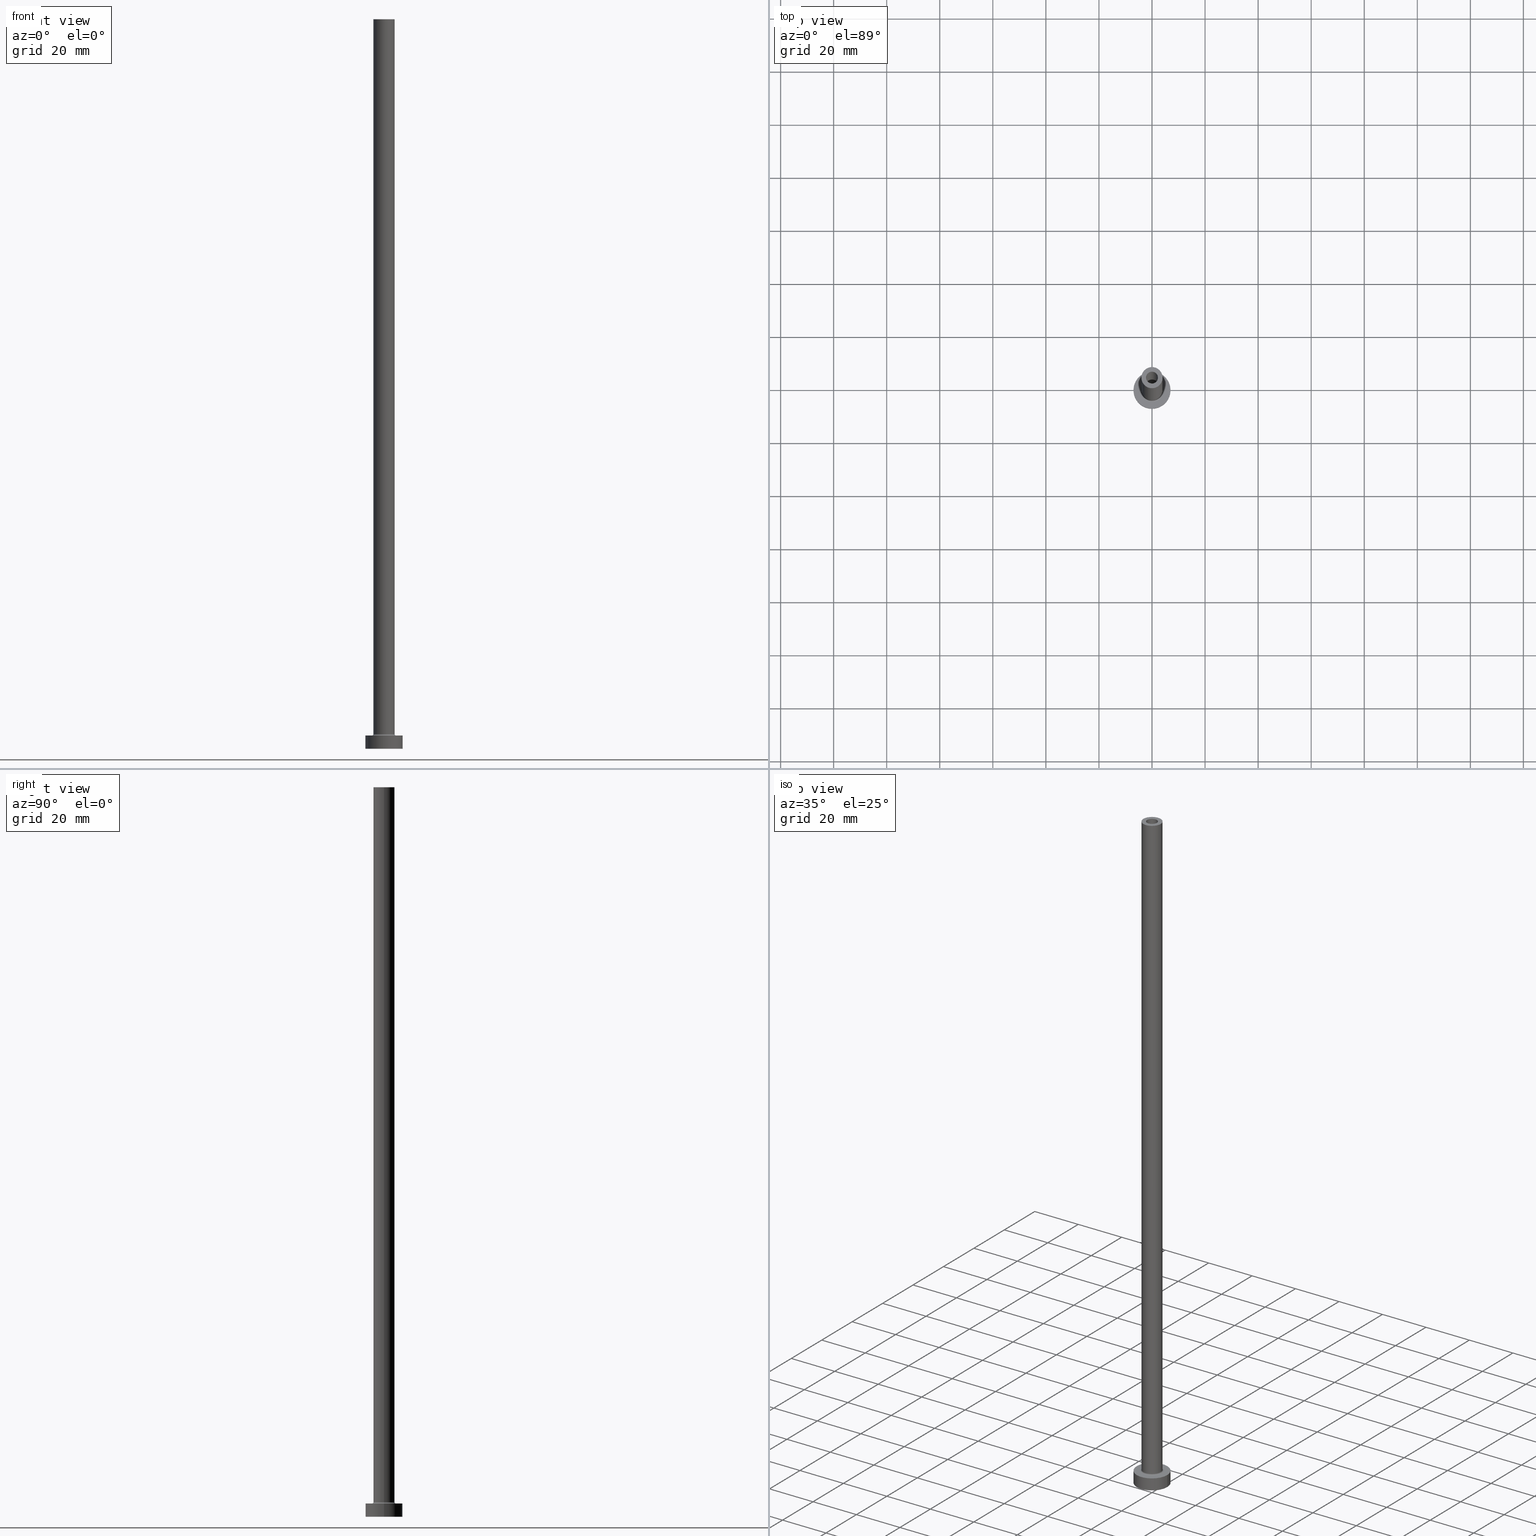
[diagram: canonical four-view strip — front | top / right | iso, engineering-drawing reading convention]
A machine part, canonical four-view strip (front | top / right | iso — engineering-drawing reading convention). The complete STEP part file that produces these views, byte-faithful:
ISO-10303-21;
HEADER;
FILE_DESCRIPTION (( 'STEP AP203' ),
    '1' );
FILE_NAME ('5592.STEP',
    '2023-02-13T17:22:00',
    ( '' ),
    ( '' ),
    'SwSTEP 2.0',
    'SolidWorks 2019',
    '' );
FILE_SCHEMA (( 'CONFIG_CONTROL_DESIGN' ));
ENDSEC;

DATA;
#1 = ORIENTED_EDGE ( 'NONE', *, *, #194, .T. ) ;
#2 = CYLINDRICAL_SURFACE ( 'NONE', #152, 7.000000000000000000 ) ;
#3 = ADVANCED_FACE ( 'NONE', ( #252 ), #14, .F. ) ;
#4 = CARTESIAN_POINT ( 'NONE',  ( -7.000000000000000000, 0.000000000000000000, 0.000000000000000000 ) ) ;
#5 = APPROVAL_DATE_TIME ( #254, #162 ) ;
#6 = CC_DESIGN_PERSON_AND_ORGANIZATION_ASSIGNMENT ( #149, #285, ( #379 ) ) ;
#7 = CARTESIAN_POINT ( 'NONE',  ( 0.000000000000000000, 0.000000000000000000, 275.0000000000000000 ) ) ;
#8 = ORIENTED_EDGE ( 'NONE', *, *, #247, .F. ) ;
#9 = APPROVAL_ROLE ( '' ) ;
#10 = COORDINATED_UNIVERSAL_TIME_OFFSET ( 1, 0, .AHEAD. ) ;
#11 = AXIS2_PLACEMENT_3D ( 'NONE', #158, #454, #55 ) ;
#12 = CARTESIAN_POINT ( 'NONE',  ( 0.000000000000000000, 0.000000000000000000, 0.000000000000000000 ) ) ;
#13 = CIRCLE ( 'NONE', #338, 2.399999999999999911 ) ;
#14 = CYLINDRICAL_SURFACE ( 'NONE', #385, 2.399999999999999911 ) ;
#15 = PLANE ( 'NONE',  #143 ) ;
#16 = EDGE_CURVE ( 'NONE', #17, #447, #249, .T. ) ;
#17 = VERTEX_POINT ( 'NONE', #439 ) ;
#18 = ORIENTED_EDGE ( 'NONE', *, *, #343, .F. ) ;
#19 = VECTOR ( 'NONE', #160, 1000.000000000000000 ) ;
#20 = DIRECTION ( 'NONE',  ( 0.000000000000000000, 0.000000000000000000, -1.000000000000000000 ) ) ;
#21 = DIRECTION ( 'NONE',  ( 1.000000000000000000, 0.000000000000000000, 0.000000000000000000 ) ) ;
#22 = EDGE_CURVE ( 'NONE', #380, #446, #255, .T. ) ;
#23 = FACE_OUTER_BOUND ( 'NONE', #41, .T. ) ;
#24 = CARTESIAN_POINT ( 'NONE',  ( -2.250000000000000000, 0.000000000000000000, 230.0000000000000284 ) ) ;
#25 = CARTESIAN_POINT ( 'NONE',  ( 0.000000000000000000, 0.000000000000000000, 5.000000000000000000 ) ) ;
#26 = DIRECTION ( 'NONE',  ( 0.000000000000000000, 0.000000000000000000, 1.000000000000000000 ) ) ;
#27 = DIRECTION ( 'NONE',  ( 0.000000000000000000, 0.000000000000000000, 1.000000000000000000 ) ) ;
#28 = AXIS2_PLACEMENT_3D ( 'NONE', #275, #108, #207 ) ;
#29 = CC_DESIGN_APPROVAL ( #42, ( #379 ) ) ;
#30 = DIRECTION ( 'NONE',  ( 0.000000000000000000, 0.000000000000000000, -1.000000000000000000 ) ) ;
#31 = CARTESIAN_POINT ( 'NONE',  ( 2.250000000000000000, 2.755455298081543792E-16, 275.0000000000000000 ) ) ;
#32 = ADVANCED_FACE ( 'NONE', ( #434 ), #359, .F. ) ;
#33 = ORIENTED_EDGE ( 'NONE', *, *, #227, .T. ) ;
#34 = CARTESIAN_POINT ( 'NONE',  ( -4.000000000000000000, 0.000000000000000000, 275.0000000000000000 ) ) ;
#35 = EDGE_LOOP ( 'NONE', ( #259, #239, #290, #76 ) ) ;
#36 = DIRECTION ( 'NONE',  ( 0.000000000000000000, 0.000000000000000000, 1.000000000000000000 ) ) ;
#37 = CIRCLE ( 'NONE', #11, 4.000000000000000000 ) ;
#38 = LOCAL_TIME ( 18, 22, 0.000000000000000000, #400 ) ;
#39 = ORIENTED_EDGE ( 'NONE', *, *, #66, .T. ) ;
#40 = ORIENTED_EDGE ( 'NONE', *, *, #95, .T. ) ;
#41 = EDGE_LOOP ( 'NONE', ( #151, #429, #122, #48 ) ) ;
#42 = APPROVAL ( #251, 'NEUR�EN�' ) ;
#43 = CARTESIAN_POINT ( 'NONE',  ( 4.000000000000000000, 4.898587196589412829E-16, 275.0000000000000000 ) ) ;
#44 = FACE_BOUND ( 'NONE', #106, .T. ) ;
#45 = AXIS2_PLACEMENT_3D ( 'NONE', #422, #89, #372 ) ;
#46 = ADVANCED_FACE ( 'NONE', ( #44, #185 ), #15, .T. ) ;
#47 = ORIENTED_EDGE ( 'NONE', *, *, #208, .F. ) ;
#48 = ORIENTED_EDGE ( 'NONE', *, *, #176, .F. ) ;
#49 = EDGE_LOOP ( 'NONE', ( #18, #8 ) ) ;
#50 = CARTESIAN_POINT ( 'NONE',  ( 4.000000000000000000, 4.898587196589412829E-16, 5.500000000000005329 ) ) ;
#51 = ORIENTED_EDGE ( 'NONE', *, *, #421, .T. ) ;
#52 = VECTOR ( 'NONE', #401, 1000.000000000000000 ) ;
#53 = DIRECTION ( 'NONE',  ( 1.000000000000000000, 0.000000000000000000, 0.000000000000000000 ) ) ;
#54 = DIRECTION ( 'NONE',  ( -1.000000000000000000, 1.224646799147351482E-16, 0.000000000000000000 ) ) ;
#55 = DIRECTION ( 'NONE',  ( 1.000000000000000000, 0.000000000000000000, 0.000000000000000000 ) ) ;
#56 = DIRECTION ( 'NONE',  ( 1.000000000000000000, 0.000000000000000000, 0.000000000000000000 ) ) ;
#57 = FACE_BOUND ( 'NONE', #49, .T. ) ;
#58 = DIRECTION ( 'NONE',  ( 0.000000000000000000, 0.000000000000000000, 1.000000000000000000 ) ) ;
#59 = TOROIDAL_SURFACE ( 'NONE', #170, 4.500000000000000888, 0.5000000000000000000 ) ;
#60 = ADVANCED_FACE ( 'NONE', ( #237, #344 ), #199, .T. ) ;
#61 = CARTESIAN_POINT ( 'NONE',  ( -2.399999999999999911, 0.000000000000000000, 236.7882250993908997 ) ) ;
#62 = EDGE_LOOP ( 'NONE', ( #224, #281 ) ) ;
#63 = LINE ( 'NONE', #34, #328 ) ;
#64 = APPROVAL_DATE_TIME ( #295, #291 ) ;
#65 = FACE_OUTER_BOUND ( 'NONE', #35, .T. ) ;
#66 = EDGE_CURVE ( 'NONE', #101, #120, #368, .T. ) ;
#67 = AXIS2_PLACEMENT_3D ( 'NONE', #147, #317, #388 ) ;
#68 = CARTESIAN_POINT ( 'NONE',  ( 2.399999999999999911, 2.939152317953647106E-16, 230.0000000000000284 ) ) ;
#69 = CC_DESIGN_SECURITY_CLASSIFICATION ( #379, ( #266 ) ) ;
#70 = ORIENTED_EDGE ( 'NONE', *, *, #406, .T. ) ;
#71 = PERSON_AND_ORGANIZATION_ROLE ( 'design_owner' ) ;
#72 = ORIENTED_EDGE ( 'NONE', *, *, #421, .F. ) ;
#73 = DIRECTION ( 'NONE',  ( -0.000000000000000000, -0.000000000000000000, -1.000000000000000000 ) ) ;
#74 = CARTESIAN_POINT ( 'NONE',  ( 7.000000000000000000, 8.572527594031473190E-16, 0.000000000000000000 ) ) ;
#75 = CIRCLE ( 'NONE', #157, 7.000000000000000000 ) ;
#76 = ORIENTED_EDGE ( 'NONE', *, *, #150, .F. ) ;
#77 = DATE_AND_TIME ( #440, #38 ) ;
#78 = ORIENTED_EDGE ( 'NONE', *, *, #22, .T. ) ;
#79 = CC_DESIGN_PERSON_AND_ORGANIZATION_ASSIGNMENT ( #292, #148, ( #266 ) ) ;
#80 = ORIENTED_EDGE ( 'NONE', *, *, #416, .F. ) ;
#81 = AXIS2_PLACEMENT_3D ( 'NONE', #111, #408, #87 ) ;
#82 = CIRCLE ( 'NONE', #191, 7.000000000000000000 ) ;
#83 = ORIENTED_EDGE ( 'NONE', *, *, #136, .F. ) ;
#84 = VERTEX_POINT ( 'NONE', #97 ) ;
#85 = CARTESIAN_POINT ( 'NONE',  ( 0.000000000000000000, 0.000000000000000000, 5.000000000000000000 ) ) ;
#86 = ADVANCED_FACE ( 'NONE', ( #457 ), #59, .F. ) ;
#87 = DIRECTION ( 'NONE',  ( -1.000000000000000000, 0.000000000000000000, 0.000000000000000000 ) ) ;
#88 = DIRECTION ( 'NONE',  ( 1.000000000000000000, 0.000000000000000000, 0.000000000000000000 ) ) ;
#89 = DIRECTION ( 'NONE',  ( 0.000000000000000000, 0.000000000000000000, 1.000000000000000000 ) ) ;
#90 = CLOSED_SHELL ( 'NONE', ( #278, #283, #86, #428, #397, #312, #60, #213, #236, #46, #299, #3, #103, #32 ) ) ;
#91 = CARTESIAN_POINT ( 'NONE',  ( 0.000000000000000000, 0.000000000000000000, 230.0000000000000284 ) ) ;
#92 = LINE ( 'NONE', #196, #303 ) ;
#93 = DIRECTION ( 'NONE',  ( -0.000000000000000000, -0.000000000000000000, -1.000000000000000000 ) ) ;
#94 = DIRECTION ( 'NONE',  ( 0.000000000000000000, 0.000000000000000000, 1.000000000000000000 ) ) ;
#95 = EDGE_CURVE ( 'NONE', #399, #134, #395, .T. ) ;
#96 = CARTESIAN_POINT ( 'NONE',  ( 7.000000000000000000, 8.572527594031473190E-16, 5.000000000000000000 ) ) ;
#97 = CARTESIAN_POINT ( 'NONE',  ( 2.399999999999999911, 2.939152317953647106E-16, 0.000000000000000000 ) ) ;
#98 = CIRCLE ( 'NONE', #128, 2.250000000000000000 ) ;
#99 = APPROVAL_PERSON_ORGANIZATION ( #216, #42, #412 ) ;
#100 = CARTESIAN_POINT ( 'NONE',  ( -2.250000000000000000, 0.000000000000000000, 275.0000000000000000 ) ) ;
#101 = VERTEX_POINT ( 'NONE', #448 ) ;
#102 = CARTESIAN_POINT ( 'NONE',  ( 0.000000000000000000, 0.000000000000000000, 236.7882250993908997 ) ) ;
#103 = ADVANCED_FACE ( 'NONE', ( #307, #193 ), #369, .F. ) ;
#104 = ORIENTED_EDGE ( 'NONE', *, *, #156, .F. ) ;
#105 = CARTESIAN_POINT ( 'NONE',  ( 0.000000000000000000, 0.000000000000000000, 5.000000000000000000 ) ) ;
#106 = EDGE_LOOP ( 'NONE', ( #215, #83 ) ) ;
#107 = AXIS2_PLACEMENT_3D ( 'NONE', #430, #384, #433 ) ;
#108 = DIRECTION ( 'NONE',  ( 0.000000000000000000, 0.000000000000000000, -1.000000000000000000 ) ) ;
#109 = CARTESIAN_POINT ( 'NONE',  ( 0.000000000000000000, 0.000000000000000000, 230.0000000000000284 ) ) ;
#110 = CC_DESIGN_DATE_AND_TIME_ASSIGNMENT ( #116, #189, ( #115 ) ) ;
#111 = CARTESIAN_POINT ( 'NONE',  ( 0.000000000000000000, 0.000000000000000000, 275.0000000000000000 ) ) ;
#112 = AXIS2_PLACEMENT_3D ( 'NONE', #12, #117, #174 ) ;
#113 = SECURITY_CLASSIFICATION_LEVEL ( 'unclassified' ) ;
#114 = ORIENTED_EDGE ( 'NONE', *, *, #343, .T. ) ;
#115 = PRODUCT_DEFINITION ( 'NEZN�M�', '', #266, #138 ) ;
#116 = DATE_AND_TIME ( #364, #145 ) ;
#117 = DIRECTION ( 'NONE',  ( 0.000000000000000000, 0.000000000000000000, 1.000000000000000000 ) ) ;
#118 = EDGE_LOOP ( 'NONE', ( #217, #168, #316, #308 ) ) ;
#119 = CIRCLE ( 'NONE', #164, 2.399999999999999911 ) ;
#120 = VERTEX_POINT ( 'NONE', #24 ) ;
#121 = CC_DESIGN_PERSON_AND_ORGANIZATION_ASSIGNMENT ( #214, #325, ( #266 ) ) ;
#122 = ORIENTED_EDGE ( 'NONE', *, *, #241, .T. ) ;
#123 = DATE_AND_TIME ( #197, #287 ) ;
#124 = DIRECTION ( 'NONE',  ( -0.000000000000000000, -0.000000000000000000, -1.000000000000000000 ) ) ;
#125 = DIRECTION ( 'NONE',  ( 0.000000000000000000, 0.000000000000000000, 1.000000000000000000 ) ) ;
#126 = CARTESIAN_POINT ( 'NONE',  ( -4.000000000000000000, 0.000000000000000000, 5.500000000000005329 ) ) ;
#127 = CARTESIAN_POINT ( 'NONE',  ( 0.000000000000000000, 0.000000000000000000, 275.0000000000000000 ) ) ;
#128 = AXIS2_PLACEMENT_3D ( 'NONE', #109, #246, #144 ) ;
#129 = CIRCLE ( 'NONE', #320, 4.500000000000000888 ) ;
#130 = DIRECTION ( 'NONE',  ( 0.000000000000000000, -1.000000000000000000, 0.000000000000000000 ) ) ;
#131 = CARTESIAN_POINT ( 'NONE',  ( -4.500000000000000888, 5.510910596163088569E-16, 5.000000000000002665 ) ) ;
#132 = EDGE_CURVE ( 'NONE', #380, #323, #37, .T. ) ;
#133 = DIRECTION ( 'NONE',  ( 1.000000000000000000, 0.000000000000000000, -0.000000000000000000 ) ) ;
#134 = VERTEX_POINT ( 'NONE', #131 ) ;
#135 = DIRECTION ( 'NONE',  ( 0.000000000000000000, 0.000000000000000000, 1.000000000000000000 ) ) ;
#136 = EDGE_CURVE ( 'NONE', #447, #17, #423, .T. ) ;
#137 = EDGE_LOOP ( 'NONE', ( #211, #40, #314, #80 ) ) ;
#138 = DESIGN_CONTEXT ( 'detailed design', #456, 'design' ) ;
#139 = AXIS2_PLACEMENT_3D ( 'NONE', #342, #415, #302 ) ;
#140 = AXIS2_PLACEMENT_3D ( 'NONE', #352, #36, #172 ) ;
#141 = CYLINDRICAL_SURFACE ( 'NONE', #107, 4.000000000000000000 ) ;
#142 = CYLINDRICAL_SURFACE ( 'NONE', #257, 2.399999999999999911 ) ;
#143 = AXIS2_PLACEMENT_3D ( 'NONE', #250, #154, #133 ) ;
#144 = DIRECTION ( 'NONE',  ( 1.000000000000000000, 0.000000000000000000, 0.000000000000000000 ) ) ;
#145 = LOCAL_TIME ( 18, 22, 0.000000000000000000, #10 ) ;
#146 = AXIS2_PLACEMENT_3D ( 'NONE', #202, #26, #348 ) ;
#147 = CARTESIAN_POINT ( 'NONE',  ( 0.000000000000000000, 0.000000000000000000, 0.000000000000000000 ) ) ;
#148 = PERSON_AND_ORGANIZATION_ROLE ( 'creator' ) ;
#149 = PERSON_AND_ORGANIZATION ( #389, #445 ) ;
#150 = EDGE_CURVE ( 'NONE', #134, #351, #436, .T. ) ;
#151 = ORIENTED_EDGE ( 'NONE', *, *, #406, .F. ) ;
#152 = AXIS2_PLACEMENT_3D ( 'NONE', #105, #124, #459 ) ;
#153 = PERSON_AND_ORGANIZATION ( #389, #445 ) ;
#154 = DIRECTION ( 'NONE',  ( 0.000000000000000000, 0.000000000000000000, 1.000000000000000000 ) ) ;
#155 = EDGE_LOOP ( 'NONE', ( #33, #39 ) ) ;
#156 = EDGE_CURVE ( 'NONE', #17, #120, #232, .T. ) ;
#157 = AXIS2_PLACEMENT_3D ( 'NONE', #374, #58, #452 ) ;
#158 = CARTESIAN_POINT ( 'NONE',  ( 0.000000000000000000, 0.000000000000000000, 275.0000000000000000 ) ) ;
#159 = DIRECTION ( 'NONE',  ( -1.000000000000000000, 0.000000000000000000, 0.000000000000000000 ) ) ;
#160 = DIRECTION ( 'NONE',  ( 0.000000000000000000, 0.000000000000000000, -1.000000000000000000 ) ) ;
#161 = COORDINATED_UNIVERSAL_TIME_OFFSET ( 1, 0, .AHEAD. ) ;
#162 = APPROVAL ( #289, 'NEUR�EN�' ) ;
#163 = CARTESIAN_POINT ( 'NONE',  ( 0.000000000000000000, 0.000000000000000000, 275.0000000000000000 ) ) ;
#164 = AXIS2_PLACEMENT_3D ( 'NONE', #393, #73, #313 ) ;
#165 = CARTESIAN_POINT ( 'NONE',  ( 4.500000000000000888, 0.000000000000000000, 5.500000000000005329 ) ) ;
#166 = CARTESIAN_POINT ( 'NONE',  ( 0.000000000000000000, 0.000000000000000000, 230.0000000000000284 ) ) ;
#167 = CC_DESIGN_PERSON_AND_ORGANIZATION_ASSIGNMENT ( #394, #222, ( #115 ) ) ;
#168 = ORIENTED_EDGE ( 'NONE', *, *, #358, .F. ) ;
#169 = FACE_OUTER_BOUND ( 'NONE', #181, .T. ) ;
#170 = AXIS2_PLACEMENT_3D ( 'NONE', #270, #190, #420 ) ;
#171 = LOCAL_TIME ( 18, 22, 0.000000000000000000, #398 ) ;
#172 = DIRECTION ( 'NONE',  ( 1.000000000000000000, 0.000000000000000000, 0.000000000000000000 ) ) ;
#173 = VERTEX_POINT ( 'NONE', #411 ) ;
#174 = DIRECTION ( 'NONE',  ( 1.000000000000000000, 0.000000000000000000, 0.000000000000000000 ) ) ;
#175 = ORIENTED_EDGE ( 'NONE', *, *, #220, .F. ) ;
#176 = EDGE_CURVE ( 'NONE', #387, #221, #92, .T. ) ;
#177 = ORIENTED_EDGE ( 'NONE', *, *, #180, .T. ) ;
#178 =( NAMED_UNIT ( * ) PLANE_ANGLE_UNIT ( ) SI_UNIT ( $, .RADIAN. ) );
#179 = COORDINATED_UNIVERSAL_TIME_OFFSET ( 1, 0, .AHEAD. ) ;
#180 = EDGE_CURVE ( 'NONE', #363, #173, #301, .T. ) ;
#181 = EDGE_LOOP ( 'NONE', ( #404, #47, #297, #1 ) ) ;
#182 = AXIS2_PLACEMENT_3D ( 'NONE', #127, #125, #268 ) ;
#183 = ORIENTED_EDGE ( 'NONE', *, *, #132, .F. ) ;
#184 = AXIS2_PLACEMENT_3D ( 'NONE', #419, #267, #53 ) ;
#185 = FACE_OUTER_BOUND ( 'NONE', #62, .T. ) ;
#186 = APPROVAL_ROLE ( '' ) ;
#187 = APPROVAL_DATE_TIME ( #123, #42 ) ;
#188 = ORIENTED_EDGE ( 'NONE', *, *, #66, .F. ) ;
#189 = DATE_TIME_ROLE ( 'creation_date' ) ;
#190 = DIRECTION ( 'NONE',  ( 0.000000000000000000, 0.000000000000000000, 1.000000000000000000 ) ) ;
#191 = AXIS2_PLACEMENT_3D ( 'NONE', #225, #449, #365 ) ;
#192 = LINE ( 'NONE', #455, #414 ) ;
#193 = FACE_OUTER_BOUND ( 'NONE', #204, .T. ) ;
#194 = EDGE_CURVE ( 'NONE', #399, #446, #286, .T. ) ;
#195 = CARTESIAN_POINT ( 'NONE',  ( 0.000000000000000000, 0.000000000000000000, 275.0000000000000000 ) ) ;
#196 = CARTESIAN_POINT ( 'NONE',  ( -7.000000000000000000, 0.000000000000000000, 5.000000000000000000 ) ) ;
#197 = CALENDAR_DATE ( 2023, 13, 2 ) ;
#198 = FACE_OUTER_BOUND ( 'NONE', #409, .T. ) ;
#199 = PLANE ( 'NONE',  #139 ) ;
#200 = DIRECTION ( 'NONE',  ( -0.000000000000000000, -0.000000000000000000, -1.000000000000000000 ) ) ;
#201 = AXIS2_PLACEMENT_3D ( 'NONE', #163, #94, #375 ) ;
#202 = CARTESIAN_POINT ( 'NONE',  ( 0.000000000000000000, 0.000000000000000000, 230.0000000000000284 ) ) ;
#203 = EDGE_CURVE ( 'NONE', #238, #363, #318, .T. ) ;
#204 = EDGE_LOOP ( 'NONE', ( #72, #326 ) ) ;
#205 = FACE_OUTER_BOUND ( 'NONE', #355, .T. ) ;
#206 = VECTOR ( 'NONE', #20, 1000.000000000000000 ) ;
#207 = DIRECTION ( 'NONE',  ( -1.000000000000000000, 0.000000000000000000, 0.000000000000000000 ) ) ;
#208 = EDGE_CURVE ( 'NONE', #323, #380, #405, .T. ) ;
#209 = ORIENTED_EDGE ( 'NONE', *, *, #136, .T. ) ;
#210 = DIRECTION ( 'NONE',  ( -0.000000000000000000, -0.000000000000000000, -1.000000000000000000 ) ) ;
#211 = ORIENTED_EDGE ( 'NONE', *, *, #194, .F. ) ;
#212 = DIRECTION ( 'NONE',  ( 0.000000000000000000, 0.000000000000000000, -1.000000000000000000 ) ) ;
#213 = ADVANCED_FACE ( 'NONE', ( #57, #305 ), #240, .F. ) ;
#214 = PERSON_AND_ORGANIZATION ( #389, #445 ) ;
#215 = ORIENTED_EDGE ( 'NONE', *, *, #16, .F. ) ;
#216 = PERSON_AND_ORGANIZATION ( #389, #445 ) ;
#217 = ORIENTED_EDGE ( 'NONE', *, *, #373, .F. ) ;
#218 = ORIENTED_EDGE ( 'NONE', *, *, #227, .F. ) ;
#219 = EDGE_LOOP ( 'NONE', ( #276, #271 ) ) ;
#220 = EDGE_CURVE ( 'NONE', #323, #399, #63, .T. ) ;
#221 = VERTEX_POINT ( 'NONE', #4 ) ;
#222 = PERSON_AND_ORGANIZATION_ROLE ( 'creator' ) ;
#223 = DIRECTION ( 'NONE',  ( -0.000000000000000000, -0.000000000000000000, -1.000000000000000000 ) ) ;
#224 = ORIENTED_EDGE ( 'NONE', *, *, #208, .T. ) ;
#225 = CARTESIAN_POINT ( 'NONE',  ( 0.000000000000000000, 0.000000000000000000, 5.000000000000000000 ) ) ;
#226 = DIRECTION ( 'NONE',  ( -0.000000000000000000, -0.000000000000000000, -1.000000000000000000 ) ) ;
#227 = EDGE_CURVE ( 'NONE', #120, #101, #98, .T. ) ;
#228 = CC_DESIGN_APPROVAL ( #162, ( #266 ) ) ;
#229 = DIRECTION ( 'NONE',  ( 1.000000000000000000, 0.000000000000000000, 0.000000000000000000 ) ) ;
#230 = CARTESIAN_POINT ( 'NONE',  ( 0.000000000000000000, 0.000000000000000000, 5.500000000000005329 ) ) ;
#231 = DIRECTION ( 'NONE',  ( -1.000000000000000000, 0.000000000000000000, 0.000000000000000000 ) ) ;
#232 = LINE ( 'NONE', #100, #19 ) ;
#233 = CARTESIAN_POINT ( 'NONE',  ( 2.250000000000000000, 2.755455298081543792E-16, 275.0000000000000000 ) ) ;
#234 = CIRCLE ( 'NONE', #184, 4.000000000000000000 ) ;
#235 = ORIENTED_EDGE ( 'NONE', *, *, #358, .T. ) ;
#236 = ADVANCED_FACE ( 'NONE', ( #169 ), #141, .T. ) ;
#237 = FACE_BOUND ( 'NONE', #327, .T. ) ;
#238 = VERTEX_POINT ( 'NONE', #68 ) ;
#239 = ORIENTED_EDGE ( 'NONE', *, *, #381, .F. ) ;
#240 = PLANE ( 'NONE',  #67 ) ;
#241 = EDGE_CURVE ( 'NONE', #460, #221, #243, .T. ) ;
#242 =( LENGTH_UNIT ( ) NAMED_UNIT ( * ) SI_UNIT ( .MILLI., .METRE. ) );
#243 = CIRCLE ( 'NONE', #360, 7.000000000000000000 ) ;
#244 = FACE_OUTER_BOUND ( 'NONE', #118, .T. ) ;
#245 = ORIENTED_EDGE ( 'NONE', *, *, #150, .T. ) ;
#246 = DIRECTION ( 'NONE',  ( 0.000000000000000000, 0.000000000000000000, 1.000000000000000000 ) ) ;
#247 = EDGE_CURVE ( 'NONE', #84, #173, #119, .T. ) ;
#248 = APPLICATION_PROTOCOL_DEFINITION ( 'international standard', 'config_control_design', 1994, #331 ) ;
#249 = CIRCLE ( 'NONE', #310, 2.250000000000000000 ) ;
#250 = CARTESIAN_POINT ( 'NONE',  ( 0.000000000000000000, 0.000000000000000000, 275.0000000000000000 ) ) ;
#251 = APPROVAL_STATUS ( 'not_yet_approved' ) ;
#252 = FACE_OUTER_BOUND ( 'NONE', #442, .T. ) ;
#253 = CALENDAR_DATE ( 2023, 13, 2 ) ;
#254 = DATE_AND_TIME ( #333, #282 ) ;
#255 = LINE ( 'NONE', #43, #52 ) ;
#256 = EDGE_CURVE ( 'NONE', #238, #84, #280, .T. ) ;
#257 = AXIS2_PLACEMENT_3D ( 'NONE', #102, #350, #382 ) ;
#258 = APPROVAL_PERSON_ORGANIZATION ( #153, #162, #186 ) ;
#259 = ORIENTED_EDGE ( 'NONE', *, *, #95, .F. ) ;
#260 = CYLINDRICAL_SURFACE ( 'NONE', #329, 7.000000000000000000 ) ;
#261 = CARTESIAN_POINT ( 'NONE',  ( 0.000000000000000000, 0.000000000000000000, 236.7882250993908997 ) ) ;
#262 = ORIENTED_EDGE ( 'NONE', *, *, #256, .F. ) ;
#263 = CARTESIAN_POINT ( 'NONE',  ( 0.000000000000000000, 0.000000000000000000, 5.000000000000000000 ) ) ;
#264 = DIRECTION ( 'NONE',  ( -0.000000000000000000, -0.000000000000000000, -1.000000000000000000 ) ) ;
#265 = DIRECTION ( 'NONE',  ( 1.000000000000000000, 0.000000000000000000, 0.000000000000000000 ) ) ;
#266 = PRODUCT_DEFINITION_FORMATION_WITH_SPECIFIED_SOURCE ( 'LIBOVOLN�', '', #437, .NOT_KNOWN. ) ;
#267 = DIRECTION ( 'NONE',  ( 0.000000000000000000, 0.000000000000000000, 1.000000000000000000 ) ) ;
#268 = DIRECTION ( 'NONE',  ( 1.000000000000000000, 0.000000000000000000, 0.000000000000000000 ) ) ;
#269 = CYLINDRICAL_SURFACE ( 'NONE', #403, 4.000000000000000000 ) ;
#270 = CARTESIAN_POINT ( 'NONE',  ( 0.000000000000000000, 0.000000000000000000, 5.500000000000005329 ) ) ;
#271 = ORIENTED_EDGE ( 'NONE', *, *, #241, .F. ) ;
#272 = UNCERTAINTY_MEASURE_WITH_UNIT (LENGTH_MEASURE( 1.000000000000000082E-05 ), #242, 'distance_accuracy_value', 'NONE');
#273 = APPROVAL_PERSON_ORGANIZATION ( #294, #291, #9 ) ;
#274 = ORIENTED_EDGE ( 'NONE', *, *, #203, .T. ) ;
#275 = CARTESIAN_POINT ( 'NONE',  ( 0.000000000000000000, 0.000000000000000000, 275.0000000000000000 ) ) ;
#276 = ORIENTED_EDGE ( 'NONE', *, *, #391, .F. ) ;
#277 = CARTESIAN_POINT ( 'NONE',  ( 2.399999999999999911, 2.939152317953647106E-16, 236.7882250993908997 ) ) ;
#278 = ADVANCED_FACE ( 'NONE', ( #426 ), #356, .F. ) ;
#279 = ORIENTED_EDGE ( 'NONE', *, *, #450, .F. ) ;
#280 = LINE ( 'NONE', #277, #427 ) ;
#281 = ORIENTED_EDGE ( 'NONE', *, *, #132, .T. ) ;
#282 = LOCAL_TIME ( 18, 22, 0.000000000000000000, #179 ) ;
#283 = ADVANCED_FACE ( 'NONE', ( #205 ), #142, .F. ) ;
#284 = DIRECTION ( 'NONE',  ( 0.000000000000000000, 0.000000000000000000, 1.000000000000000000 ) ) ;
#285 = PERSON_AND_ORGANIZATION_ROLE ( 'classification_officer' ) ;
#286 = CIRCLE ( 'NONE', #453, 4.000000000000000000 ) ;
#287 = LOCAL_TIME ( 18, 22, 0.000000000000000000, #161 ) ;
#288 = ORIENTED_EDGE ( 'NONE', *, *, #247, .T. ) ;
#289 = APPROVAL_STATUS ( 'not_yet_approved' ) ;
#290 = ORIENTED_EDGE ( 'NONE', *, *, #416, .T. ) ;
#291 = APPROVAL ( #324, 'NEUR�EN�' ) ;
#292 = PERSON_AND_ORGANIZATION ( #389, #445 ) ;
#293 = DIRECTION ( 'NONE',  ( 0.000000000000000000, 0.000000000000000000, -1.000000000000000000 ) ) ;
#294 = PERSON_AND_ORGANIZATION ( #389, #445 ) ;
#295 = DATE_AND_TIME ( #253, #171 ) ;
#296 = AXIS2_PLACEMENT_3D ( 'NONE', #263, #377, #265 ) ;
#297 = ORIENTED_EDGE ( 'NONE', *, *, #220, .T. ) ;
#298 = CIRCLE ( 'NONE', #345, 7.000000000000000000 ) ;
#299 = ADVANCED_FACE ( 'NONE', ( #65 ), #402, .F. ) ;
#300 = CARTESIAN_POINT ( 'NONE',  ( 0.000000000000000000, 0.000000000000000000, 0.000000000000000000 ) ) ;
#301 = LINE ( 'NONE', #61, #353 ) ;
#302 = DIRECTION ( 'NONE',  ( 1.000000000000000000, 0.000000000000000000, -0.000000000000000000 ) ) ;
#303 = VECTOR ( 'NONE', #226, 1000.000000000000000 ) ;
#304 = CIRCLE ( 'NONE', #386, 2.399999999999999911 ) ;
#305 = FACE_OUTER_BOUND ( 'NONE', #219, .T. ) ;
#306 = CC_DESIGN_DATE_AND_TIME_ASSIGNMENT ( #77, #435, ( #379 ) ) ;
#307 = FACE_BOUND ( 'NONE', #155, .T. ) ;
#308 = ORIENTED_EDGE ( 'NONE', *, *, #391, .T. ) ;
#309 = CARTESIAN_POINT ( 'NONE',  ( 0.000000000000000000, 0.000000000000000000, 0.000000000000000000 ) ) ;
#310 = AXIS2_PLACEMENT_3D ( 'NONE', #7, #284, #332 ) ;
#311 =( GEOMETRIC_REPRESENTATION_CONTEXT ( 3 ) GLOBAL_UNCERTAINTY_ASSIGNED_CONTEXT ( ( #272 ) ) GLOBAL_UNIT_ASSIGNED_CONTEXT ( ( #242, #178, #432 ) ) REPRESENTATION_CONTEXT ( 'NONE', 'WORKASPACE' ) );
#312 = ADVANCED_FACE ( 'NONE', ( #244 ), #2, .T. ) ;
#313 = DIRECTION ( 'NONE',  ( 1.000000000000000000, 0.000000000000000000, 0.000000000000000000 ) ) ;
#314 = ORIENTED_EDGE ( 'NONE', *, *, #322, .F. ) ;
#315 = DIRECTION ( 'NONE',  ( 0.000000000000000000, 0.000000000000000000, 1.000000000000000000 ) ) ;
#316 = ORIENTED_EDGE ( 'NONE', *, *, #176, .T. ) ;
#317 = DIRECTION ( 'NONE',  ( 0.000000000000000000, 0.000000000000000000, 1.000000000000000000 ) ) ;
#318 = CIRCLE ( 'NONE', #146, 2.399999999999999911 ) ;
#319 = ORIENTED_EDGE ( 'NONE', *, *, #156, .T. ) ;
#320 = AXIS2_PLACEMENT_3D ( 'NONE', #25, #264, #410 ) ;
#321 = MECHANICAL_CONTEXT ( 'NONE', #331, 'mechanical' ) ;
#322 = EDGE_CURVE ( 'NONE', #351, #134, #129, .T. ) ;
#323 = VERTEX_POINT ( 'NONE', #339 ) ;
#324 = APPROVAL_STATUS ( 'not_yet_approved' ) ;
#325 = PERSON_AND_ORGANIZATION_ROLE ( 'design_supplier' ) ;
#326 = ORIENTED_EDGE ( 'NONE', *, *, #203, .F. ) ;
#327 = EDGE_LOOP ( 'NONE', ( #357, #245 ) ) ;
#328 = VECTOR ( 'NONE', #210, 1000.000000000000000 ) ;
#329 = AXIS2_PLACEMENT_3D ( 'NONE', #85, #223, #159 ) ;
#330 = ORIENTED_EDGE ( 'NONE', *, *, #180, .F. ) ;
#331 = APPLICATION_CONTEXT ( 'configuration controlled 3d designs of mechanical parts and assemblies' ) ;
#332 = DIRECTION ( 'NONE',  ( 1.000000000000000000, 0.000000000000000000, 0.000000000000000000 ) ) ;
#333 = CALENDAR_DATE ( 2023, 13, 2 ) ;
#334 = PRODUCT_RELATED_PRODUCT_CATEGORY ( 'detail', '', ( #437 ) ) ;
#335 = SHAPE_DEFINITION_REPRESENTATION ( #441, #458 ) ;
#336 = CARTESIAN_POINT ( 'NONE',  ( -7.000000000000000000, 0.000000000000000000, 5.000000000000000000 ) ) ;
#337 = CARTESIAN_POINT ( 'NONE',  ( -4.500000000000000888, 5.510910596163089556E-16, 5.500000000000005329 ) ) ;
#338 = AXIS2_PLACEMENT_3D ( 'NONE', #300, #200, #88 ) ;
#339 = CARTESIAN_POINT ( 'NONE',  ( -4.000000000000000000, 0.000000000000000000, 275.0000000000000000 ) ) ;
#340 = DIRECTION ( 'NONE',  ( 1.224646799147353207E-16, 1.000000000000000000, -0.000000000000000000 ) ) ;
#341 = DIRECTION ( 'NONE',  ( 0.000000000000000000, 0.000000000000000000, -1.000000000000000000 ) ) ;
#342 = CARTESIAN_POINT ( 'NONE',  ( 0.000000000000000000, 0.000000000000000000, 5.000000000000000000 ) ) ;
#343 = EDGE_CURVE ( 'NONE', #173, #84, #13, .T. ) ;
#344 = FACE_OUTER_BOUND ( 'NONE', #383, .T. ) ;
#345 = AXIS2_PLACEMENT_3D ( 'NONE', #367, #27, #56 ) ;
#346 = AXIS2_PLACEMENT_3D ( 'NONE', #337, #340, #54 ) ;
#347 = LINE ( 'NONE', #31, #206 ) ;
#348 = DIRECTION ( 'NONE',  ( 1.000000000000000000, 0.000000000000000000, 0.000000000000000000 ) ) ;
#349 = ORIENTED_EDGE ( 'NONE', *, *, #16, .T. ) ;
#350 = DIRECTION ( 'NONE',  ( 0.000000000000000000, 0.000000000000000000, -1.000000000000000000 ) ) ;
#351 = VERTEX_POINT ( 'NONE', #371 ) ;
#352 = CARTESIAN_POINT ( 'NONE',  ( 0.000000000000000000, 0.000000000000000000, 5.500000000000005329 ) ) ;
#353 = VECTOR ( 'NONE', #30, 1000.000000000000000 ) ;
#354 = EDGE_LOOP ( 'NONE', ( #349, #425, #218, #104 ) ) ;
#355 = EDGE_LOOP ( 'NONE', ( #51, #396, #288, #330 ) ) ;
#356 = CYLINDRICAL_SURFACE ( 'NONE', #28, 2.250000000000000000 ) ;
#357 = ORIENTED_EDGE ( 'NONE', *, *, #322, .T. ) ;
#358 = EDGE_CURVE ( 'NONE', #387, #438, #82, .T. ) ;
#359 = CYLINDRICAL_SURFACE ( 'NONE', #81, 2.250000000000000000 ) ;
#360 = AXIS2_PLACEMENT_3D ( 'NONE', #309, #315, #424 ) ;
#361 = CC_DESIGN_APPROVAL ( #291, ( #115 ) ) ;
#362 = MANIFOLD_SOLID_BREP ( 'Odebrat vysunut�m4', #90 ) ;
#363 = VERTEX_POINT ( 'NONE', #407 ) ;
#364 = CALENDAR_DATE ( 2023, 13, 2 ) ;
#365 = DIRECTION ( 'NONE',  ( 1.000000000000000000, 0.000000000000000000, 0.000000000000000000 ) ) ;
#366 = DIRECTION ( 'NONE',  ( -1.000000000000000000, 0.000000000000000000, 0.000000000000000000 ) ) ;
#367 = CARTESIAN_POINT ( 'NONE',  ( 0.000000000000000000, 0.000000000000000000, 0.000000000000000000 ) ) ;
#368 = CIRCLE ( 'NONE', #378, 2.250000000000000000 ) ;
#369 = PLANE ( 'NONE',  #45 ) ;
#370 = AXIS2_PLACEMENT_3D ( 'NONE', #165, #130, #341 ) ;
#371 = CARTESIAN_POINT ( 'NONE',  ( 4.500000000000000888, 0.000000000000000000, 5.000000000000002665 ) ) ;
#372 = DIRECTION ( 'NONE',  ( 1.000000000000000000, 0.000000000000000000, -0.000000000000000000 ) ) ;
#373 = EDGE_CURVE ( 'NONE', #438, #460, #192, .T. ) ;
#374 = CARTESIAN_POINT ( 'NONE',  ( 0.000000000000000000, 0.000000000000000000, 5.000000000000000000 ) ) ;
#375 = DIRECTION ( 'NONE',  ( 1.000000000000000000, 0.000000000000000000, 0.000000000000000000 ) ) ;
#376 = DIRECTION ( 'NONE',  ( -0.000000000000000000, -0.000000000000000000, -1.000000000000000000 ) ) ;
#377 = DIRECTION ( 'NONE',  ( -0.000000000000000000, -0.000000000000000000, -1.000000000000000000 ) ) ;
#378 = AXIS2_PLACEMENT_3D ( 'NONE', #166, #135, #21 ) ;
#379 = SECURITY_CLASSIFICATION ( '', '', #113 ) ;
#380 = VERTEX_POINT ( 'NONE', #417 ) ;
#381 = EDGE_CURVE ( 'NONE', #446, #399, #234, .T. ) ;
#382 = DIRECTION ( 'NONE',  ( -1.000000000000000000, 0.000000000000000000, 0.000000000000000000 ) ) ;
#383 = EDGE_LOOP ( 'NONE', ( #235, #70 ) ) ;
#384 = DIRECTION ( 'NONE',  ( -0.000000000000000000, -0.000000000000000000, -1.000000000000000000 ) ) ;
#385 = AXIS2_PLACEMENT_3D ( 'NONE', #261, #293, #366 ) ;
#386 = AXIS2_PLACEMENT_3D ( 'NONE', #91, #413, #229 ) ;
#387 = VERTEX_POINT ( 'NONE', #336 ) ;
#388 = DIRECTION ( 'NONE',  ( 1.000000000000000000, 0.000000000000000000, -0.000000000000000000 ) ) ;
#389 = PERSON ( 'NEUR�EN�', 'NEUR�EN�', 'NEUR�EN�', ('NEUR�EN�'), ('NEUR�EN�'), ('NEUR�EN�') ) ;
#390 = PERSON_AND_ORGANIZATION ( #389, #445 ) ;
#391 = EDGE_CURVE ( 'NONE', #221, #460, #298, .T. ) ;
#392 = ORIENTED_EDGE ( 'NONE', *, *, #381, .T. ) ;
#393 = CARTESIAN_POINT ( 'NONE',  ( 0.000000000000000000, 0.000000000000000000, 0.000000000000000000 ) ) ;
#394 = PERSON_AND_ORGANIZATION ( #389, #445 ) ;
#395 = CIRCLE ( 'NONE', #346, 0.5000000000000004441 ) ;
#396 = ORIENTED_EDGE ( 'NONE', *, *, #256, .T. ) ;
#397 = ADVANCED_FACE ( 'NONE', ( #23 ), #260, .T. ) ;
#398 = COORDINATED_UNIVERSAL_TIME_OFFSET ( 1, 0, .AHEAD. ) ;
#399 = VERTEX_POINT ( 'NONE', #126 ) ;
#400 = COORDINATED_UNIVERSAL_TIME_OFFSET ( 1, 0, .AHEAD. ) ;
#401 = DIRECTION ( 'NONE',  ( -0.000000000000000000, -0.000000000000000000, -1.000000000000000000 ) ) ;
#402 = TOROIDAL_SURFACE ( 'NONE', #140, 4.500000000000000888, 0.5000000000000000000 ) ;
#403 = AXIS2_PLACEMENT_3D ( 'NONE', #195, #93, #231 ) ;
#404 = ORIENTED_EDGE ( 'NONE', *, *, #22, .F. ) ;
#405 = CIRCLE ( 'NONE', #201, 4.000000000000000000 ) ;
#406 = EDGE_CURVE ( 'NONE', #438, #387, #75, .T. ) ;
#407 = CARTESIAN_POINT ( 'NONE',  ( -2.399999999999999911, 0.000000000000000000, 230.0000000000000284 ) ) ;
#408 = DIRECTION ( 'NONE',  ( 0.000000000000000000, 0.000000000000000000, -1.000000000000000000 ) ) ;
#409 = EDGE_LOOP ( 'NONE', ( #183, #78, #392, #175 ) ) ;
#410 = DIRECTION ( 'NONE',  ( 1.000000000000000000, 0.000000000000000000, 0.000000000000000000 ) ) ;
#411 = CARTESIAN_POINT ( 'NONE',  ( -2.399999999999999911, 0.000000000000000000, 0.000000000000000000 ) ) ;
#412 = APPROVAL_ROLE ( '' ) ;
#413 = DIRECTION ( 'NONE',  ( 0.000000000000000000, 0.000000000000000000, 1.000000000000000000 ) ) ;
#414 = VECTOR ( 'NONE', #376, 1000.000000000000000 ) ;
#415 = DIRECTION ( 'NONE',  ( 0.000000000000000000, 0.000000000000000000, 1.000000000000000000 ) ) ;
#416 = EDGE_CURVE ( 'NONE', #446, #351, #461, .T. ) ;
#417 = CARTESIAN_POINT ( 'NONE',  ( 4.000000000000000000, 4.898587196589412829E-16, 275.0000000000000000 ) ) ;
#418 = DIRECTION ( 'NONE',  ( 1.000000000000000000, 0.000000000000000000, 0.000000000000000000 ) ) ;
#419 = CARTESIAN_POINT ( 'NONE',  ( 0.000000000000000000, 0.000000000000000000, 5.500000000000005329 ) ) ;
#420 = DIRECTION ( 'NONE',  ( 1.000000000000000000, 0.000000000000000000, 0.000000000000000000 ) ) ;
#421 = EDGE_CURVE ( 'NONE', #363, #238, #304, .T. ) ;
#422 = CARTESIAN_POINT ( 'NONE',  ( 0.000000000000000000, 0.000000000000000000, 230.0000000000000284 ) ) ;
#423 = CIRCLE ( 'NONE', #182, 2.250000000000000000 ) ;
#424 = DIRECTION ( 'NONE',  ( 1.000000000000000000, 0.000000000000000000, 0.000000000000000000 ) ) ;
#425 = ORIENTED_EDGE ( 'NONE', *, *, #450, .T. ) ;
#426 = FACE_OUTER_BOUND ( 'NONE', #354, .T. ) ;
#427 = VECTOR ( 'NONE', #212, 1000.000000000000000 ) ;
#428 = ADVANCED_FACE ( 'NONE', ( #198 ), #269, .T. ) ;
#429 = ORIENTED_EDGE ( 'NONE', *, *, #373, .T. ) ;
#430 = CARTESIAN_POINT ( 'NONE',  ( 0.000000000000000000, 0.000000000000000000, 275.0000000000000000 ) ) ;
#431 = APPLICATION_PROTOCOL_DEFINITION ( 'international standard', 'config_control_design', 1994, #456 ) ;
#432 =( NAMED_UNIT ( * ) SI_UNIT ( $, .STERADIAN. ) SOLID_ANGLE_UNIT ( ) );
#433 = DIRECTION ( 'NONE',  ( -1.000000000000000000, 0.000000000000000000, 0.000000000000000000 ) ) ;
#434 = FACE_OUTER_BOUND ( 'NONE', #444, .T. ) ;
#435 = DATE_TIME_ROLE ( 'classification_date' ) ;
#436 = CIRCLE ( 'NONE', #296, 4.500000000000000888 ) ;
#437 = PRODUCT ( '5592', '5592', '', ( #321 ) ) ;
#438 = VERTEX_POINT ( 'NONE', #96 ) ;
#439 = CARTESIAN_POINT ( 'NONE',  ( -2.250000000000000000, 0.000000000000000000, 275.0000000000000000 ) ) ;
#440 = CALENDAR_DATE ( 2023, 13, 2 ) ;
#441 = PRODUCT_DEFINITION_SHAPE ( 'NONE', 'NONE',  #115 ) ;
#442 = EDGE_LOOP ( 'NONE', ( #262, #274, #177, #114 ) ) ;
#443 = CC_DESIGN_PERSON_AND_ORGANIZATION_ASSIGNMENT ( #390, #71, ( #437 ) ) ;
#444 = EDGE_LOOP ( 'NONE', ( #279, #209, #319, #188 ) ) ;
#445 = ORGANIZATION ( 'NEUR�EN�', 'NEUR�EN�', '' ) ;
#446 = VERTEX_POINT ( 'NONE', #50 ) ;
#447 = VERTEX_POINT ( 'NONE', #233 ) ;
#448 = CARTESIAN_POINT ( 'NONE',  ( 2.250000000000000000, 2.755455298081543792E-16, 230.0000000000000284 ) ) ;
#449 = DIRECTION ( 'NONE',  ( 0.000000000000000000, 0.000000000000000000, 1.000000000000000000 ) ) ;
#450 = EDGE_CURVE ( 'NONE', #447, #101, #347, .T. ) ;
#451 = DIRECTION ( 'NONE',  ( 0.000000000000000000, 0.000000000000000000, 1.000000000000000000 ) ) ;
#452 = DIRECTION ( 'NONE',  ( 1.000000000000000000, 0.000000000000000000, 0.000000000000000000 ) ) ;
#453 = AXIS2_PLACEMENT_3D ( 'NONE', #230, #451, #418 ) ;
#454 = DIRECTION ( 'NONE',  ( 0.000000000000000000, 0.000000000000000000, 1.000000000000000000 ) ) ;
#455 = CARTESIAN_POINT ( 'NONE',  ( 7.000000000000000000, 8.572527594031473190E-16, 5.000000000000000000 ) ) ;
#456 = APPLICATION_CONTEXT ( 'configuration controlled 3d designs of mechanical parts and assemblies' ) ;
#457 = FACE_OUTER_BOUND ( 'NONE', #137, .T. ) ;
#458 = ADVANCED_BREP_SHAPE_REPRESENTATION ( '5592', ( #362, #112 ), #311 ) ;
#459 = DIRECTION ( 'NONE',  ( -1.000000000000000000, 0.000000000000000000, 0.000000000000000000 ) ) ;
#460 = VERTEX_POINT ( 'NONE', #74 ) ;
#461 = CIRCLE ( 'NONE', #370, 0.5000000000000004441 ) ;
ENDSEC;
END-ISO-10303-21;
